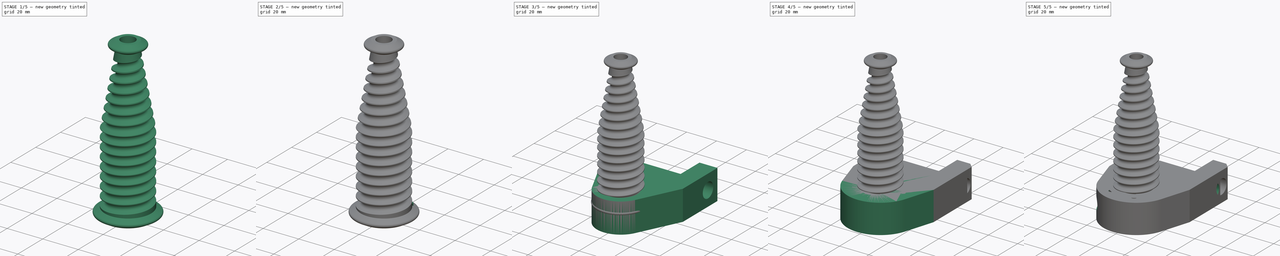
[diagram: build sequence overview — one tinted view per stage of 5, left to right]
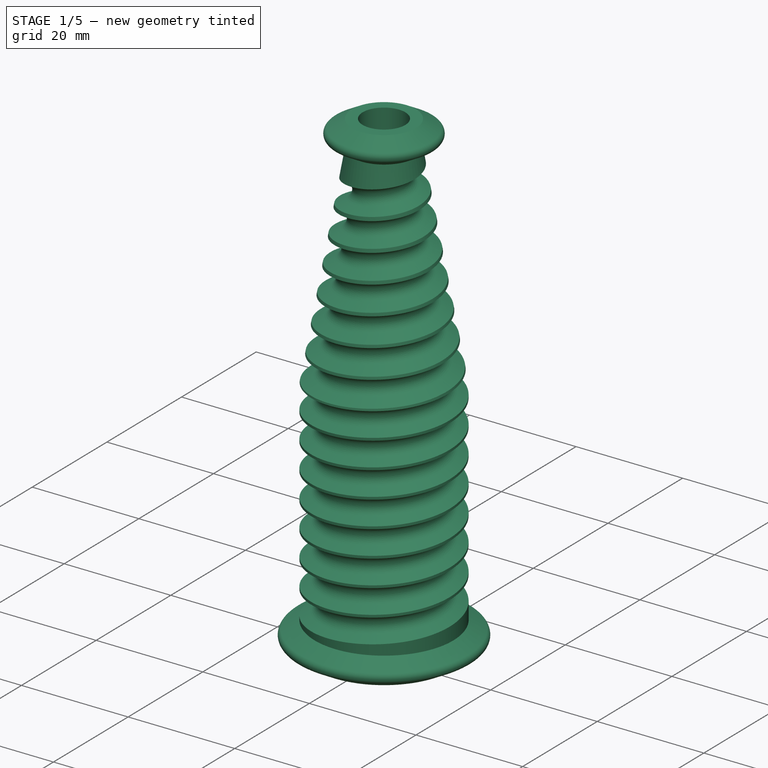
[diagram: stage 1 of 5 — iso view after this stage's code; geometry added in this stage tinted green]
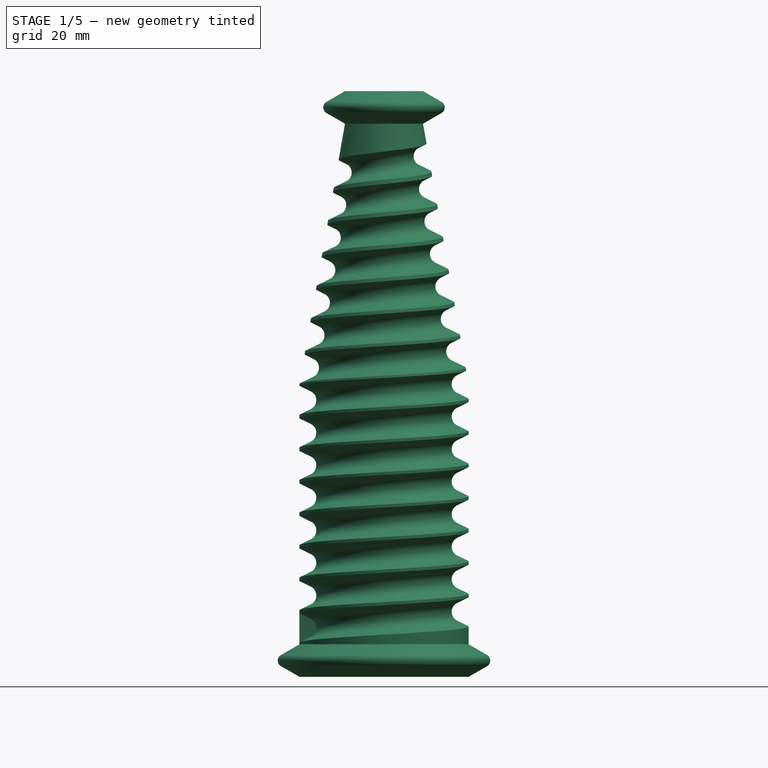
[diagram: stage 1 of 5 — front view after this stage's code; geometry added in this stage tinted green]
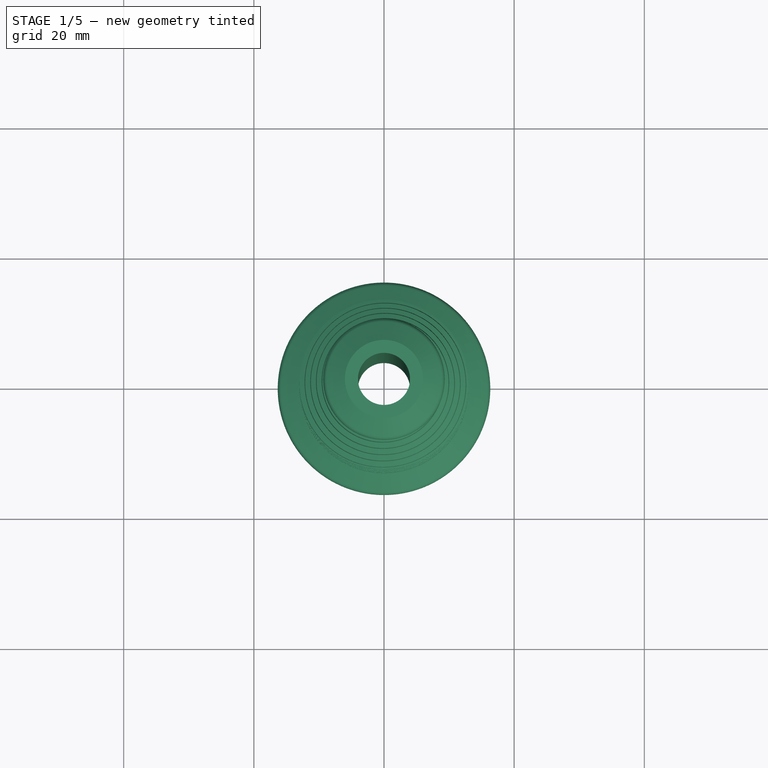
[diagram: stage 1 of 5 — top view after this stage's code; geometry added in this stage tinted green]
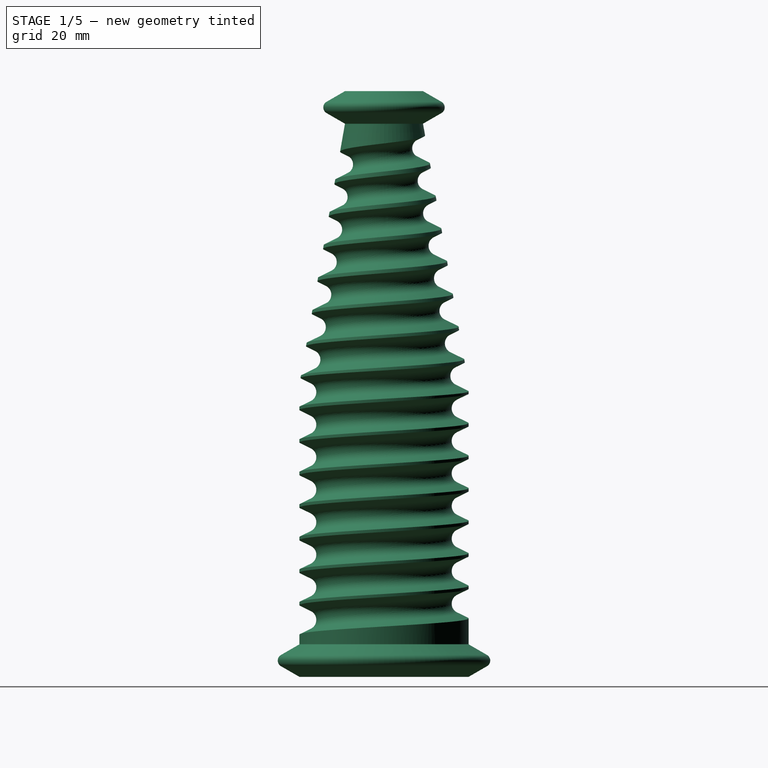
[diagram: stage 1 of 5 — right view after this stage's code; geometry added in this stage tinted green]
FCSTD DOCUMENT  (FreeCAD 0.19R24276 (Git))
Label: motormount
License: All rights reserved
LicenseURL: http://en.wikipedia.org/wiki/All_rights_reserved
objects: Sketcher::SketchObject×16, PartDesign::Hole×6, PartDesign::Chamfer×5, PartDesign::Body×4, PartDesign::Pad×3, PartDesign::Pocket×3, PartDesign::Fillet×3, PartDesign::SubtractiveHelix×2, PartDesign::PolarPattern×1, PartDesign::Groove×1, PartDesign::Revolution×1
note: 69 computed .brp shape members not serialized (recipe doc carries the construction recipe); baked Part::Feature solids carry a one-line shape summary decoded from their .brp

FEATURE [PartDesign::Body] Body002  label="Bearingguard"
  Group = -> [Sketch010,Pad002,Sketch011,Groove,Sketch012,Hole003,Sketch014,Hole004,Chamfer001,Chamfer003,Chamfer004]
  Origin = -> Origin002
  Placement = pos=(0,0,120) rot=(0,0,1;0rad)
  Tip = -> Chamfer004
FEATURE [Sketcher::SketchObject] Sketch016
  FullyConstrained = true
  MapMode = 5
  Placement = pos=(0,0,0) rot=(1,0,0;1.5708rad)
  Support = -> [XZ_Plane003]
  sketch-geometry (13):
    g0: LineSegment StartX=0 StartY=0 StartZ=0 EndX=0 EndY=90 EndZ=0
    g1: LineSegment StartX=0 StartY=0 StartZ=0 EndX=13 EndY=0 EndZ=0
    g2: LineSegment StartX=13 StartY=0 StartZ=0 EndX=15.8301 EndY=1.63397 EndZ=0
    g3: LineSegment StartX=15.8301 StartY=3.36603 StartZ=0 EndX=13 EndY=5 EndZ=0
    g4: LineSegment StartX=13 StartY=5 StartZ=0 EndX=13 EndY=45 EndZ=0
    g5: LineSegment StartX=13 StartY=45 StartZ=0 EndX=6 EndY=85 EndZ=0
    g6: LineSegment StartX=6 StartY=85 StartZ=0 EndX=8.83013 EndY=86.634 EndZ=0
    g7: LineSegment StartX=8.83013 StartY=88.366 StartZ=0 EndX=6 EndY=90 EndZ=0
    g8: LineSegment StartX=6 StartY=90 StartZ=0 EndX=0 EndY=90 EndZ=0
    g9: LineSegment StartX=6 StartY=85 StartZ=0 EndX=6 EndY=90 EndZ=0
    g10: LineSegment StartX=13 StartY=0 StartZ=0 EndX=13 EndY=5 EndZ=0
    g11: ArcOfCircle CenterX=15.3301 CenterY=2.5 CenterZ=0 NormalX=0 NormalY=0 NormalZ=1 AngleXU=0 Radius=1 StartAngle=5.23599 EndAngle=7.33038
    g12: ArcOfCircle CenterX=8.33013 CenterY=87.5 CenterZ=0 NormalX=0 NormalY=0 NormalZ=1 AngleXU=0 Radius=1 StartAngle=5.23599 EndAngle=7.33038
  constraints (34):
    c: Coincident(g-1,g0)
    c: PointOnObject(g0,g-2)
    c: Coincident(g0,g1)
    c: PointOnObject(g1,g-1)
    c: Coincident(g1,g2)
    c: Coincident(g3,g4)
    c: Vertical(g4)
    c: Coincident(g4,g5)
    c: Coincident(g5,g6)
    c: Coincident(g7,g8)
    c: Coincident(g8,g0)
    c: Horizontal(g8)
    c: Coincident(g9,g5)
    c: Coincident(g9,g7)
    c: Coincident(g10,g1)
    c: Coincident(g10,g3)
    c: Vertical(g10)
    c: Vertical(g9)
    c: Equal(g9,g10)
    c: DistanceY(g10,g10) = 5
    c: Tangent(g2,g11) = -1.5708
    c: Tangent(g3,g11) = -1.5708
    c: Tangent(g6,g12) = -1.5708
    c: Tangent(g7,g12) = -1.5708
    c: Equal(g12,g11)
    c: Equal(g2,g3)
    c: Equal(g3,g6)
    c: Equal(g6,g7)
    c: Angle(g3,g2) = 1.0472
    c: Radius(g11) = 1
    c: DistanceX(g8,g8) = 6
    c: DistanceX(g1,g1) = 13
    c: DistanceY(g0,g4) = 45
    c: DistanceY(g0,g0) = 90
FEATURE [PartDesign::Revolution] Revolution001
  Angle = 360
  Axis = (0,-2e-16,1)
  Base = (0,0,0)
  Placement = pos=(0,0,0) rot=(1,0,0;1.5708rad)
  Profile = -> Sketch016
  ReferenceAxis = -> Sketch016 [V_Axis]
  Reversed = true
FEATURE [Sketcher::SketchObject] Sketch017
  FullyConstrained = true
  MapMode = 5
  Placement = pos=(0,0,0) rot=(1,0,0;1.5708rad)
  Support = -> [XZ_Plane003]
  sketch-geometry (4):
    g0: LineSegment StartX=14 StartY=47.75 StartZ=0 EndX=14 EndY=42.25 EndZ=0
    g1: LineSegment StartX=14 StartY=42.25 StartZ=0 EndX=11.301 EndY=43.5607 EndZ=0
    g2: LineSegment StartX=11.301 StartY=46.4393 StartZ=0 EndX=14 EndY=47.75 EndZ=0
    g3: ArcOfCircle CenterX=12 CenterY=45 CenterZ=0 NormalX=0 NormalY=0 NormalZ=1 AngleXU=0 Radius=1.6 StartAngle=2.0229 EndAngle=4.26029
  constraints (11):
    c: Coincident(g0,g1)
    c: Coincident(g2,g0)
    c: Vertical(g0)
    c: Tangent(g1,g3) = 1.5708
    c: Tangent(g2,g3) = 1.5708
    c: Equal(g2,g1)
    c: Radius(g3) = 1.6
    c: DistanceY(g0,g0) = 5.5
    c: DistanceX(g3,g0) = 2
    c: DistanceY(g-1,g3) = 45
    c: DistanceX(g-1,g3) = 12
FEATURE [Sketcher::SketchObject] Sketch018
  FullyConstrained = true
  MapMode = 5
  Placement = pos=(0,0,0) rot=(1,0,0;1.5708rad)
  Support = -> [XZ_Plane003]
  sketch-geometry (4):
    g0: LineSegment StartX=14 StartY=47.75 StartZ=0 EndX=14 EndY=42.25 EndZ=0
    g1: LineSegment StartX=14 StartY=42.25 StartZ=0 EndX=11.301 EndY=43.5607 EndZ=0
    g2: LineSegment StartX=11.301 StartY=46.4393 StartZ=0 EndX=14 EndY=47.75 EndZ=0
    g3: ArcOfCircle CenterX=12 CenterY=45 CenterZ=0 NormalX=0 NormalY=0 NormalZ=1 AngleXU=0 Radius=1.6 StartAngle=2.0229 EndAngle=4.26029
  constraints (11):
    c: Coincident(g0,g1)
    c: Coincident(g2,g0)
    c: Vertical(g0)
    c: Tangent(g1,g3) = 1.5708
    c: Tangent(g2,g3) = 1.5708
    c: Equal(g2,g1)
    c: Radius(g3) = 1.6
    c: DistanceY(g0,g0) = 5.5
    c: DistanceX(g3,g0) = 2
    c: DistanceY(g-1,g3) = 45
    c: DistanceX(g-1,g3) = 12
FEATURE [PartDesign::SubtractiveHelix] SubtractiveHelix001
  Angle = 0
  Axis = (0,-2e-16,1)
  Base = (0,0,0)
  BaseFeature = -> Revolution001
  HasBeenEdited = true
  Height = 37.5
  LeftHanded = false
  Mode = 1
  Outside = false
  Pitch = 5
  Placement = pos=(0,0,0) rot=(1,0,0;1.5708rad)
  Profile = -> Sketch017
  ReferenceAxis = -> Sketch017 [V_Axis]
  Reversed = true
  Turns = 7.5
FEATURE [PartDesign::SubtractiveHelix] SubtractiveHelix002
  Angle = -9.5
  Axis = (0,-2e-16,1)
  Base = (0,0,0)
  BaseFeature = -> SubtractiveHelix001
  HasBeenEdited = true
  Height = 37.5
  LeftHanded = false
  Mode = 1
  Outside = false
  Pitch = 5
  Placement = pos=(0,0,0) rot=(1,0,0;1.5708rad)
  Profile = -> Sketch018
  ReferenceAxis = -> Sketch018 [V_Axis]
  Turns = 7.5
FEATURE [Sketcher::SketchObject] Sketch019
  FullyConstrained = true
  MapMode = 5
  Placement = pos=(0,0,0) rot=(0,1,0;3.14159rad)
  Support = -> [XY_Plane003]
  sketch-geometry (1):
    g0: Circle CenterX=0 CenterY=0 CenterZ=0 NormalX=0 NormalY=0 NormalZ=1 AngleXU=0 Radius=4
  constraints (2):
    c: Coincident(g0,g-1)
    c: Diameter(g0) = 8
FEATURE [PartDesign::Pocket] Pocket005
  BaseFeature = -> SubtractiveHelix002
  Length = 5
  Length2 = 100
  Placement = pos=(0,0,0) rot=(1,0,0;1.5708rad)
  Profile = -> Sketch019
  Type = 1
FEATURE [Sketcher::SketchObject] Sketch021
  FullyConstrained = true
  MapMode = 5
  Placement = pos=(0,0,0) rot=(0,1,0;3.14159rad)
  Support = -> [XY_Plane003]
  sketch-geometry (9):
    g0: LineSegment StartX=5.65685 StartY=5.65685 StartZ=0 EndX=-5.65685 EndY=5.65685 EndZ=0
    g1: LineSegment StartX=-5.65685 StartY=5.65685 StartZ=0 EndX=-5.65685 EndY=-5.65685 EndZ=0
    g2: LineSegment StartX=-5.65685 StartY=-5.65685 StartZ=0 EndX=5.65685 EndY=-5.65685 EndZ=0
    g3: LineSegment StartX=5.65685 StartY=-5.65685 StartZ=0 EndX=5.65685 EndY=5.65685 EndZ=0
    g4: Circle CenterX=0 CenterY=0 CenterZ=0 NormalX=0 NormalY=0 NormalZ=1 AngleXU=0 Radius=8
    g5: Circle CenterX=5.65685 CenterY=5.65685 CenterZ=0 NormalX=0 NormalY=0 NormalZ=1 AngleXU=0 Radius=1
    g6: Circle CenterX=5.65685 CenterY=-5.65685 CenterZ=0 NormalX=0 NormalY=0 NormalZ=1 AngleXU=0 Radius=1
    g7: Circle CenterX=-5.65685 CenterY=-5.65685 CenterZ=0 NormalX=0 NormalY=0 NormalZ=1 AngleXU=0 Radius=1
    g8: Circle CenterX=-5.65685 CenterY=5.65685 CenterZ=0 NormalX=0 NormalY=0 NormalZ=1 AngleXU=0 Radius=1
  constraints (22):
    c: Coincident(g0,g1)
    c: Coincident(g1,g2)
    c: Coincident(g2,g3)
    c: Coincident(g3,g0)
    c: Equal(g0,g1)
    c: Equal(g0,g2)
    c: Equal(g0,g3)
    c: PointOnObject(g0,g4)
    c: PointOnObject(g1,g4)
    c: PointOnObject(g2,g4)
    c: PointOnObject(g3,g4)
    c: Coincident(g4,g-1)
    c: Horizontal(g0)
    c: Coincident(g5,g0)
    c: Coincident(g6,g2)
    c: Coincident(g7,g1)
    c: Coincident(g8,g0)
    c: Diameter(g7) = 2
    c: Equal(g7,g8)
    c: Equal(g7,g5)
    c: Equal(g7,g6)
    c: Distance(g8,g6) = 16
FEATURE [PartDesign::Hole] Hole006
  BaseFeature = -> Pocket005
  Depth = 25
  DepthType = 0
  Diameter = 3
  DrillForDepth = false
  DrillPoint = 1
  DrillPointAngle = 118
  HoleCutCountersinkAngle = 90
  HoleCutCustomValues = false
  HoleCutDepth = 0
  HoleCutDiameter = 6.1
  HoleCutType = 0
  ModelActualThread = false
  Placement = pos=(0,0,0) rot=(1,0,0;1.5708rad)
  Profile = -> Sketch021
  Tapered = false
  TaperedAngle = 90
  ThreadAngle = 0
  ThreadClass = 0
  ThreadCutOffInner = 0
  ThreadCutOffOuter = 0
  ThreadDirection = 0
  ThreadFit = 0
  ThreadPitch = 0
  ThreadSize = 0
  ThreadType = 0
  Threaded = false
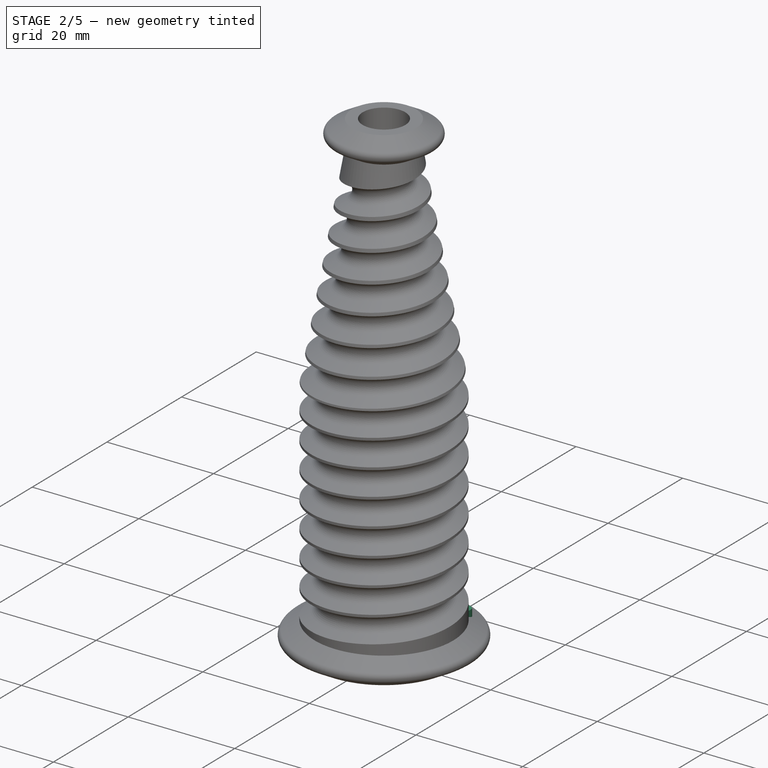
[diagram: stage 2 of 5 — iso view after this stage's code; geometry added in this stage tinted green]
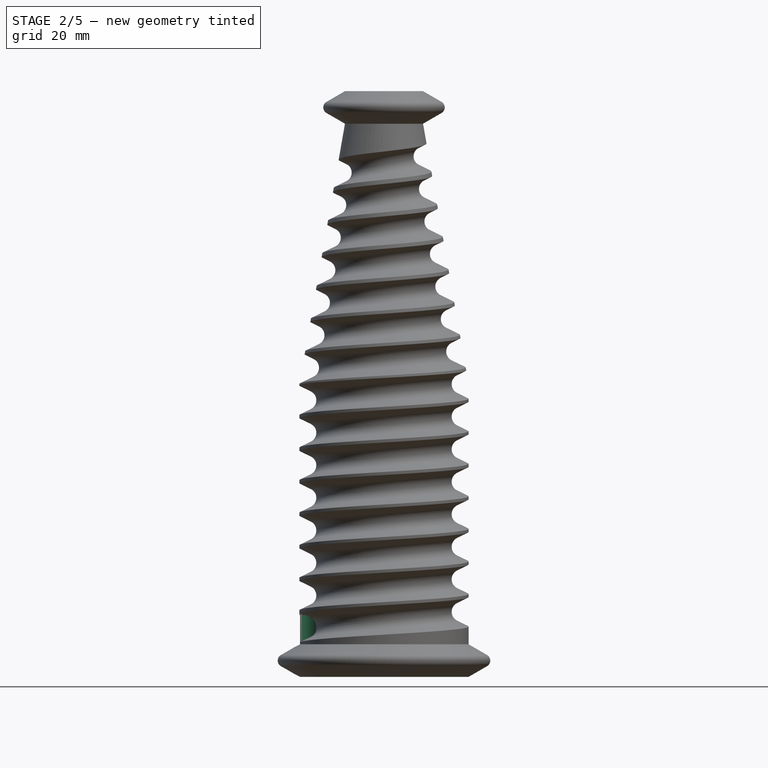
[diagram: stage 2 of 5 — front view after this stage's code; geometry added in this stage tinted green]
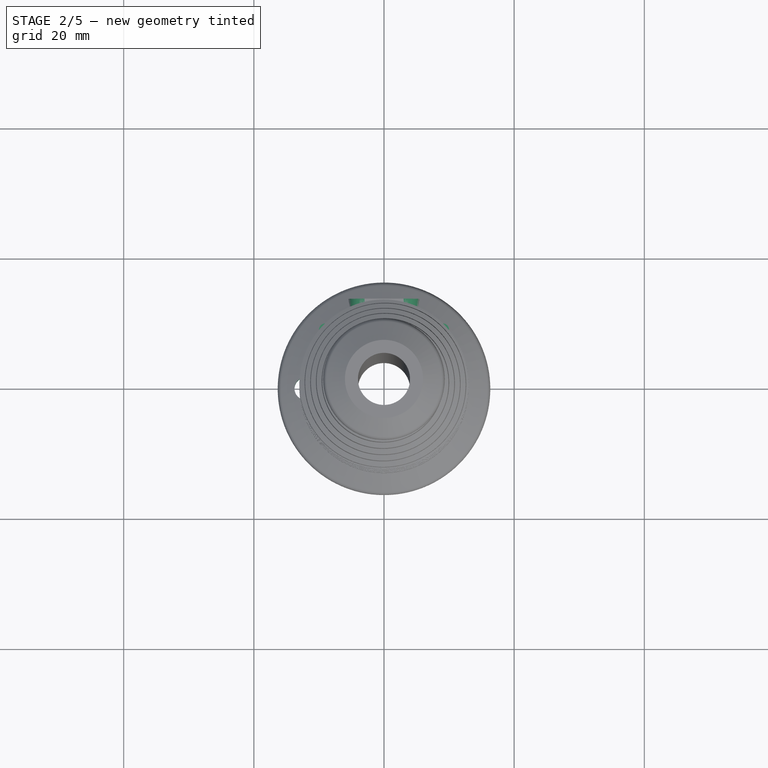
[diagram: stage 2 of 5 — top view after this stage's code; geometry added in this stage tinted green]
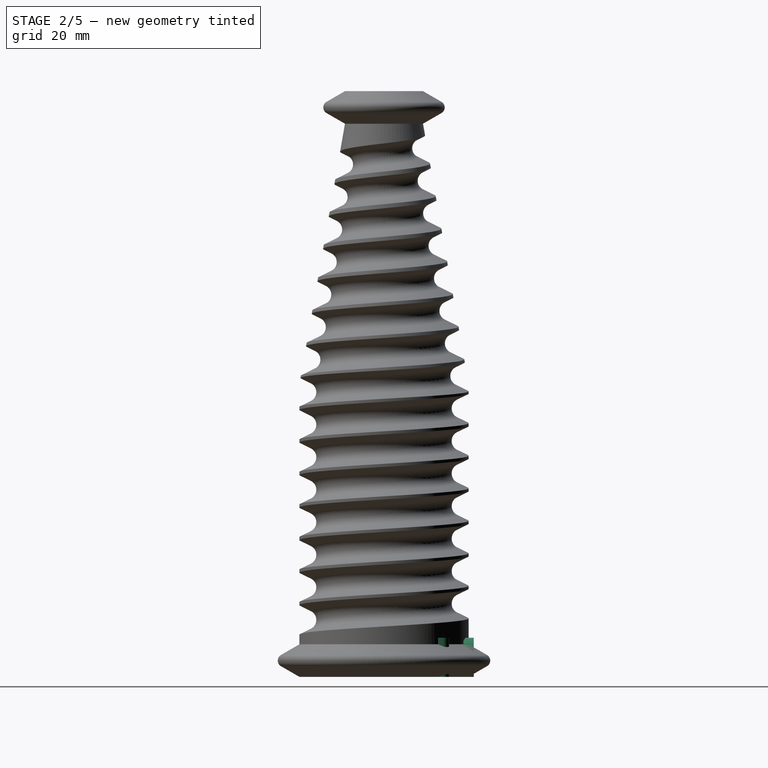
[diagram: stage 2 of 5 — right view after this stage's code; geometry added in this stage tinted green]
FEATURE [Sketcher::SketchObject] Sketch022
  FullyConstrained = true
  MapMode = 5
  Placement = pos=(0,0,0) rot=(0,1,0;3.14159rad)
  Support = -> [XY_Plane003]
  sketch-geometry (1):
    g0: Circle CenterX=12 CenterY=0 CenterZ=0 NormalX=0 NormalY=0 NormalZ=1 AngleXU=0 Radius=1.75
  constraints (3):
    c: PointOnObject(g0,g-1)
    c: Diameter(g0) = 3.5
    c: DistanceX(g-1,g0) = 12
FEATURE [Sketcher::SketchObject] Sketch023
  FullyConstrained = true
  MapMode = 5
  Support = -> [XY_Plane004]
  sketch-geometry (18):
    g0: ArcOfCircle CenterX=0 CenterY=0 CenterZ=0 NormalX=0 NormalY=0 NormalZ=1 AngleXU=0 Radius=8 StartAngle=5.77782 EndAngle=9.93014
    g1: LineSegment StartX=-7 StartY=-3.87298 StartZ=0 EndX=-8 EndY=-6 EndZ=0
    g2: LineSegment StartX=7 StartY=-3.87298 StartZ=0 EndX=8 EndY=-6 EndZ=0
    g3: LineSegment StartX=-7 StartY=-3.87298 StartZ=0 EndX=7 EndY=-3.87298 EndZ=0
    g4: LineSegment StartX=-8 StartY=-6 StartZ=0 EndX=8 EndY=-6 EndZ=0
    g5: ArcOfCircle CenterX=0 CenterY=0 CenterZ=0 NormalX=0 NormalY=0 NormalZ=1 AngleXU=0 Radius=10 StartAngle=3.14159 EndAngle=3.78509
    g6: ArcOfCircle CenterX=0 CenterY=0 CenterZ=0 NormalX=0 NormalY=0 NormalZ=1 AngleXU=0 Radius=10 StartAngle=5.63968 EndAngle=6.28319
    g7: LineSegment StartX=-10 StartY=1.2e-15 StartZ=0 EndX=-10 EndY=10 EndZ=0
    g8: LineSegment StartX=10 StartY=0 StartZ=0 EndX=10 EndY=10 EndZ=0
    g9: LineSegment StartX=-10 StartY=10 StartZ=0 EndX=-3 EndY=10 EndZ=0
    g10: LineSegment StartX=-3 StartY=10 StartZ=0 EndX=-3 EndY=12.2 EndZ=0
    g11: LineSegment StartX=-3 StartY=12.2 StartZ=0 EndX=-5.5 EndY=12.2 EndZ=0
    g12: LineSegment StartX=-5.5 StartY=12.2 StartZ=0 EndX=-5.5 EndY=13.8 EndZ=0
    g13: LineSegment StartX=-5.5 StartY=13.8 StartZ=0 EndX=5.5 EndY=13.8 EndZ=0
    g14: LineSegment StartX=5.5 StartY=13.8 StartZ=0 EndX=5.5 EndY=12.2 EndZ=0
    g15: LineSegment StartX=5.5 StartY=12.2 StartZ=0 EndX=3 EndY=12.2 EndZ=0
    g16: LineSegment StartX=3 StartY=12.2 StartZ=0 EndX=3 EndY=10 EndZ=0
    g17: LineSegment StartX=3 StartY=10 StartZ=0 EndX=10 EndY=10 EndZ=0
  constraints (52):
    c: Coincident(g0,g-1)
    c: Coincident(g1,g0)
    c: Coincident(g2,g0)
    c: Coincident(g3,g0)
    c: Coincident(g3,g0)
    c: Coincident(g4,g1)
    c: Coincident(g4,g2)
    c: Horizontal(g4)
    c: Horizontal(g3)
    c: Diameter(g0) = 16
    c: DistanceX(g3,g3) = 14
    c: Coincident(g5,g0)
    c: Coincident(g5,g1)
    c: Coincident(g6,g0)
    c: Coincident(g6,g2)
    c: Diameter(g5) = 20
    c: PointOnObject(g5,g-1)
    c: PointOnObject(g6,g-1)
    c: Coincident(g7,g5)
    c: Coincident(g8,g6)
    c: Vertical(g7)
    c: Vertical(g8)
    c: Equal(g8,g7)
    c: Coincident(g7,g9)
    c: Horizontal(g9)
    c: Coincident(g9,g10)
    c: Vertical(g10)
    c: Coincident(g10,g11)
    c: Horizontal(g11)
    c: Coincident(g11,g12)
    c: Vertical(g12)
    c: Coincident(g12,g13)
    c: Horizontal(g13)
    c: Coincident(g13,g14)
    c: Vertical(g14)
    c: Coincident(g14,g15)
    c: Horizontal(g15)
    c: Coincident(g15,g16)
    c: Vertical(g16)
    c: Coincident(g16,g17)
    c: Coincident(g17,g8)
    c: Horizontal(g17)
    c: Equal(g9,g17)
    c: Equal(g2,g1)
    c: DistanceX(g4,g4) = 16
    c: Equal(g10,g16)
    c: Equal(g15,g11)
    c: DistanceX(g10,g15) = 6
    c: DistanceX(g13,g13) = 11
    c: DistanceY(g10,g10) = 2.2
    c: DistanceY(g0,g7) = 10
    c: DistanceY(g12,g12) = 1.6
FEATURE [PartDesign::Pad] Pad003
  Direction = (1,1,1)
  Length = 6
  Length2 = 100
  Profile = -> Sketch023
  Type = 0
FEATURE [PartDesign::Fillet] Fillet
  Base = -> Pad003 [Edge18,Edge19,Edge37,Edge36]
  BaseFeature = -> Pad003
  Radius = 2
  SupportTransform = false
FEATURE [PartDesign::Fillet] Fillet001
  Base = -> Fillet [Edge42,Edge25,Edge38,Edge21]
  BaseFeature = -> Fillet
  Radius = 2.5
  SupportTransform = false
FEATURE [PartDesign::Fillet] Fillet002
  Base = -> Fillet001 [Edge55,Edge50]
  BaseFeature = -> Fillet001
  Radius = 1
  SupportTransform = false
FEATURE [PartDesign::Body] Body004  label="CableClip"
  Group = -> [Sketch023,Pad003,Fillet,Fillet001,Fillet002]
  Origin = -> Origin004
  Tip = -> Fillet002
FEATURE [PartDesign::Pocket] Pocket006
  BaseFeature = -> Hole006
  Length = 9.5
  Length2 = 100
  Placement = pos=(0,0,0) rot=(1,0,0;1.5708rad)
  Profile = -> Sketch022
  Type = 0
FEATURE [PartDesign::Body] Body003  label="Spool3"
  Group = -> [Sketch016,Revolution001,Sketch017,Sketch018,SubtractiveHelix001,SubtractiveHelix002,Sketch019,Pocket005,Sketch021,Hole006,Sketch022,Pocket006]
  Origin = -> Origin003
  Placement = pos=(0,0,15) rot=(0,0,1;0rad)
  Tip = -> Pocket006
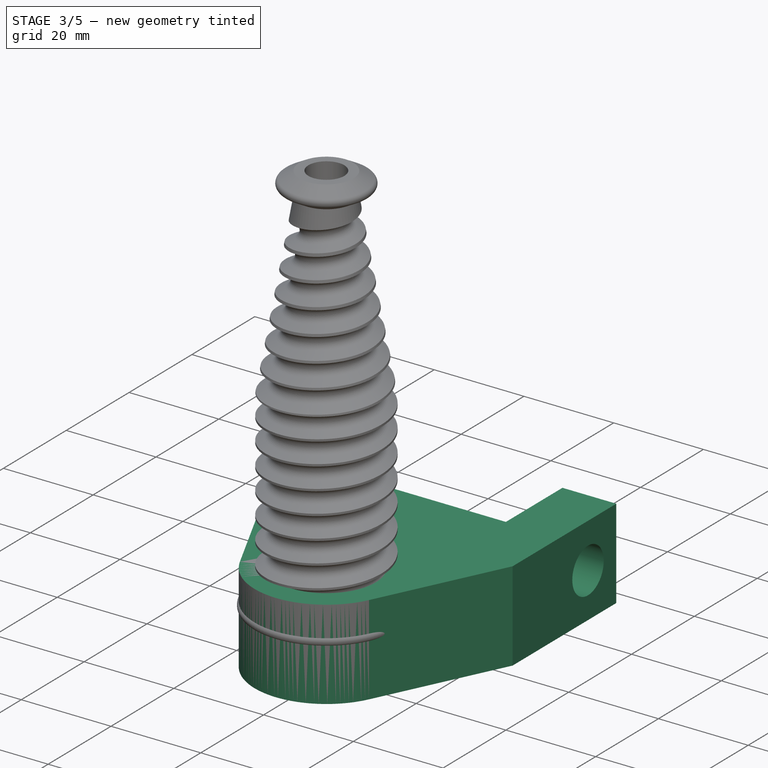
[diagram: stage 3 of 5 — iso view after this stage's code; geometry added in this stage tinted green]
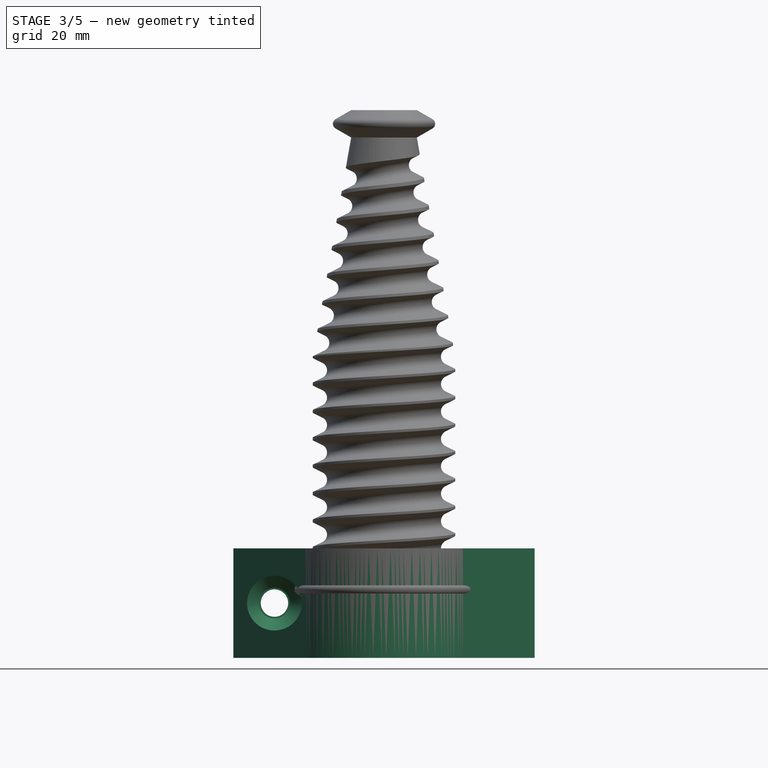
[diagram: stage 3 of 5 — front view after this stage's code; geometry added in this stage tinted green]
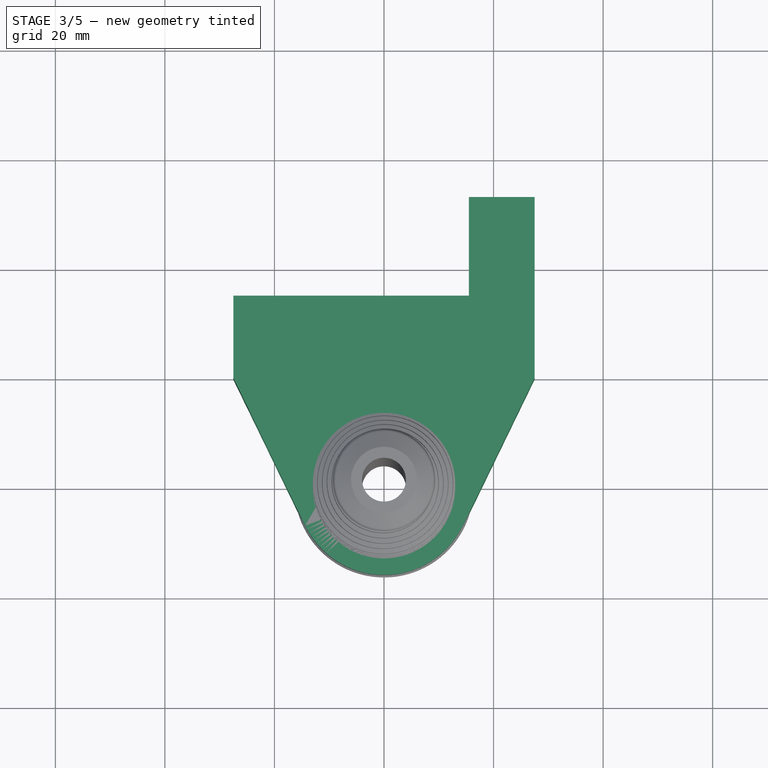
[diagram: stage 3 of 5 — top view after this stage's code; geometry added in this stage tinted green]
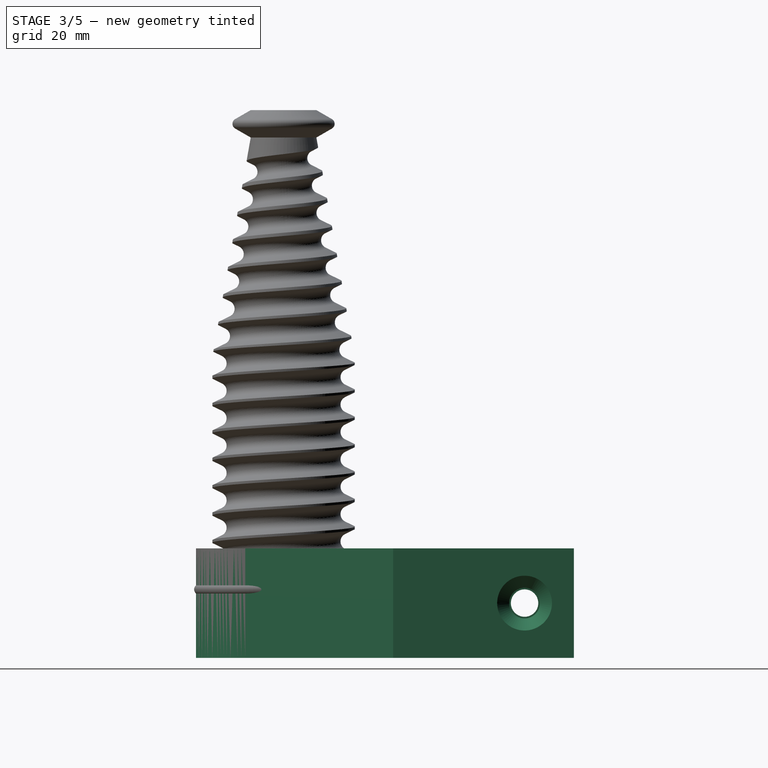
[diagram: stage 3 of 5 — right view after this stage's code; geometry added in this stage tinted green]
FEATURE [Sketcher::SketchObject] Sketch010
  FullyConstrained = true
  MapMode = 5
  Support = -> [XY_Plane002]
  sketch-geometry (10):
    g0: ArcOfCircle CenterX=0 CenterY=0 CenterZ=0 NormalX=0 NormalY=0 NormalZ=1 AngleXU=0 Radius=16 StartAngle=3.59369 EndAngle=5.83108
    g1: LineSegment StartX=-27.5 StartY=35 StartZ=0 EndX=27.5 EndY=35 EndZ=0
    g2: LineSegment StartX=-14.3925 StartY=-6.98969 StartZ=0 EndX=-27.5 EndY=20 EndZ=0
    g3: LineSegment StartX=-27.5 StartY=20 StartZ=0 EndX=-27.5 EndY=35 EndZ=0
    g4: LineSegment StartX=14.3925 StartY=-6.98969 StartZ=0 EndX=27.5 EndY=20 EndZ=0
    g5: LineSegment StartX=27.5 StartY=20 StartZ=0 EndX=27.5 EndY=35 EndZ=0
    g6: LineSegment StartX=-27.5 StartY=35 StartZ=0 EndX=15.5 EndY=35 EndZ=0
    g7: LineSegment StartX=15.5 StartY=35 StartZ=0 EndX=15.5 EndY=53 EndZ=0
    g8: LineSegment StartX=15.5 StartY=53 StartZ=0 EndX=27.5 EndY=53 EndZ=0
    g9: LineSegment StartX=27.5 StartY=53 StartZ=0 EndX=27.5 EndY=20 EndZ=0
  constraints (27):
    c: Coincident(g0,g-1)
    c: Diameter(g0) = 32
    c: Horizontal(g1)
    c: DistanceY(g0,g1) = 35
    c: DistanceX(g1,g1) = 55
    c: Tangent(g0,g2) = 1.5708
    c: Coincident(g2,g3)
    c: Coincident(g3,g1)
    c: Tangent(g0,g4) = -1.5708
    c: Coincident(g4,g5)
    c: Coincident(g5,g1)
    c: Vertical(g3)
    c: Vertical(g5)
    c: Equal(g3,g5)
    c: Equal(g2,g4)
    c: DistanceY(g5,g5) = 15
    c: Coincident(g3,g6)
    c: PointOnObject(g6,g1)
    c: Coincident(g6,g7)
    c: Vertical(g7)
    c: Coincident(g7,g8)
    c: Horizontal(g8)
    c: Coincident(g8,g9)
    c: Coincident(g9,g4)
    c: Vertical(g9)
    c: DistanceY(g7,g7) = 18
    c: DistanceX(g8,g8) = 12
FEATURE [PartDesign::Pad] Pad002
  Direction = (1,1,1)
  Length = 20
  Length2 = 100
  Midplane = true
  Profile = -> Sketch010
  Type = 0
FEATURE [Sketcher::SketchObject] Sketch011
  FullyConstrained = true
  MapMode = 5
  Placement = pos=(0,0,0) rot=(1,0,0;1.5708rad)
  Support = -> [XZ_Plane002]
  sketch-geometry (11):
    g0: LineSegment StartX=-11 StartY=3.25 StartZ=0 EndX=-11 EndY=14 EndZ=0
    g1: LineSegment StartX=-11 StartY=14 StartZ=0 EndX=0 EndY=14 EndZ=0
    g2: LineSegment StartX=0 StartY=-14 StartZ=0 EndX=-11 EndY=-14 EndZ=0
    g3: LineSegment StartX=-11 StartY=-14 StartZ=0 EndX=-11 EndY=-3.25 EndZ=0
    g4: LineSegment StartX=-11 StartY=-3.25 StartZ=0 EndX=-9 EndY=-3.25 EndZ=0
    g5: LineSegment StartX=-9 StartY=-3.25 StartZ=0 EndX=-9 EndY=3.25 EndZ=0
    g6: LineSegment StartX=-9 StartY=3.25 StartZ=0 EndX=-11 EndY=3.25 EndZ=0
    g7: LineSegment StartX=-9 StartY=3.25 StartZ=0 EndX=0 EndY=3.25 EndZ=0
    g8: LineSegment StartX=-9 StartY=3.25 StartZ=0 EndX=0 EndY=0 EndZ=0
    g9: LineSegment StartX=0 StartY=0 StartZ=0 EndX=-9 EndY=-3.25 EndZ=0
    g10: LineSegment StartX=0 StartY=14 StartZ=0 EndX=0 EndY=-14 EndZ=0
  constraints (31):
    c: Vertical(g0)
    c: Coincident(g0,g1)
    c: Horizontal(g1)
    c: Horizontal(g2)
    c: Coincident(g2,g3)
    c: Vertical(g3)
    c: Coincident(g3,g4)
    c: Horizontal(g4)
    c: Coincident(g4,g5)
    c: Vertical(g5)
    c: Coincident(g5,g6)
    c: Coincident(g6,g0)
    c: Horizontal(g6)
    c: Coincident(g5,g7)
    c: PointOnObject(g7,g-2)
    c: Horizontal(g7)
    c: Equal(g4,g6)
    c: Coincident(g5,g8)
    c: Coincident(g8,g9)
    c: Coincident(g9,g4)
    c: Equal(g9,g8)
    c: PointOnObject(g1,g-2)
    c: PointOnObject(g2,g-2)
    c: Equal(g3,g0)
    c: DistanceX(g1,g1) = 11
    c: DistanceY(g-1,g0) = 14
    c: Coincident(g8,g-1)
    c: DistanceY(g5,g5) = 6.5
    c: DistanceX(g6,g6) = 2
    c: Coincident(g10,g1)
    c: Coincident(g10,g2)
FEATURE [PartDesign::Groove] Groove
  Angle = 360
  Axis = (0,-2e-16,1)
  Base = (0,0,0)
  BaseFeature = -> Pad002
  Profile = -> Sketch011
  ReferenceAxis = -> Sketch011 [V_Axis]
  Reversed = true
FEATURE [Sketcher::SketchObject] Sketch012
  AttachmentOffset = pos=(0,0,10) rot=(0,0,1;0rad)
  FullyConstrained = true
  MapMode = 5
  Placement = pos=(0,-10,-2.2e-15) rot=(1,0,0;1.5708rad)
  Support = -> [XZ_Plane002]
  sketch-geometry (4):
    g0: Circle CenterX=20 CenterY=0 CenterZ=0 NormalX=0 NormalY=0 NormalZ=1 AngleXU=0 Radius=5
    g1: Circle CenterX=-20 CenterY=0 CenterZ=0 NormalX=0 NormalY=0 NormalZ=1 AngleXU=0 Radius=5
    g2: LineSegment StartX=-20 StartY=0 StartZ=0 EndX=0 EndY=0 EndZ=0
    g3: LineSegment StartX=0 StartY=0 StartZ=0 EndX=20 EndY=0 EndZ=0
  constraints (10):
    c: PointOnObject(g0,g-1)
    c: PointOnObject(g1,g-1)
    c: Coincident(g2,g1)
    c: Coincident(g2,g3)
    c: Coincident(g3,g0)
    c: Equal(g3,g2)
    c: Coincident(g-1,g2)
    c: Diameter(g0) = 10
    c: Equal(g0,g1)
    c: DistanceX(g1,g0) = 40
FEATURE [PartDesign::Hole] Hole003
  BaseFeature = -> Groove
  Depth = 5
  DepthType = 1
  Diameter = 5
  DrillForDepth = false
  DrillPoint = 0
  DrillPointAngle = 118
  HoleCutCountersinkAngle = 90
  HoleCutCustomValues = false
  HoleCutDepth = 44
  HoleCutDiameter = 10
  HoleCutType = 1
  ModelActualThread = false
  Profile = -> Sketch012
  Tapered = false
  TaperedAngle = 90
  ThreadAngle = 0
  ThreadClass = 0
  ThreadCutOffInner = 0
  ThreadCutOffOuter = 0
  ThreadDirection = 0
  ThreadFit = 0
  ThreadPitch = 0
  ThreadSize = 0
  ThreadType = 0
  Threaded = false
FEATURE [Sketcher::SketchObject] Sketch014
  FullyConstrained = true
  MapMode = 5
  Placement = pos=(27.5,0,0) rot=(0.57735,0.57735,0.57735;2.0944rad)
  Support = -> [Hole003]
  sketch-geometry (1):
    g0: Circle CenterX=44 CenterY=0 CenterZ=0 NormalX=0 NormalY=0 NormalZ=1 AngleXU=0 Radius=2.5
  constraints (3):
    c: PointOnObject(g0,g-1)
    c: DistanceX(g-1,g0) = 44
    c: Diameter(g0) = 5
FEATURE [PartDesign::Hole] Hole004
  BaseFeature = -> Hole003
  Depth = 5
  DepthType = 1
  Diameter = 5
  DrillForDepth = false
  DrillPoint = 1
  DrillPointAngle = 118
  HoleCutCountersinkAngle = 90
  HoleCutCustomValues = false
  HoleCutDepth = 11
  HoleCutDiameter = 10
  HoleCutType = 1
  ModelActualThread = false
  Profile = -> Sketch014
  Tapered = false
  TaperedAngle = 90
  ThreadAngle = 0
  ThreadClass = 0
  ThreadCutOffInner = 0
  ThreadCutOffOuter = 0
  ThreadDirection = 0
  ThreadFit = 0
  ThreadPitch = 0
  ThreadSize = 0
  ThreadType = 0
  Threaded = false
FEATURE [PartDesign::Chamfer] Chamfer001
  Angle = 45
  Base = -> Hole004 [Edge38,Edge26]
  BaseFeature = -> Hole004
  ChamferType = 0
  FlipDirection = false
  Size = 2.2
  Size2 = 1
  SupportTransform = false
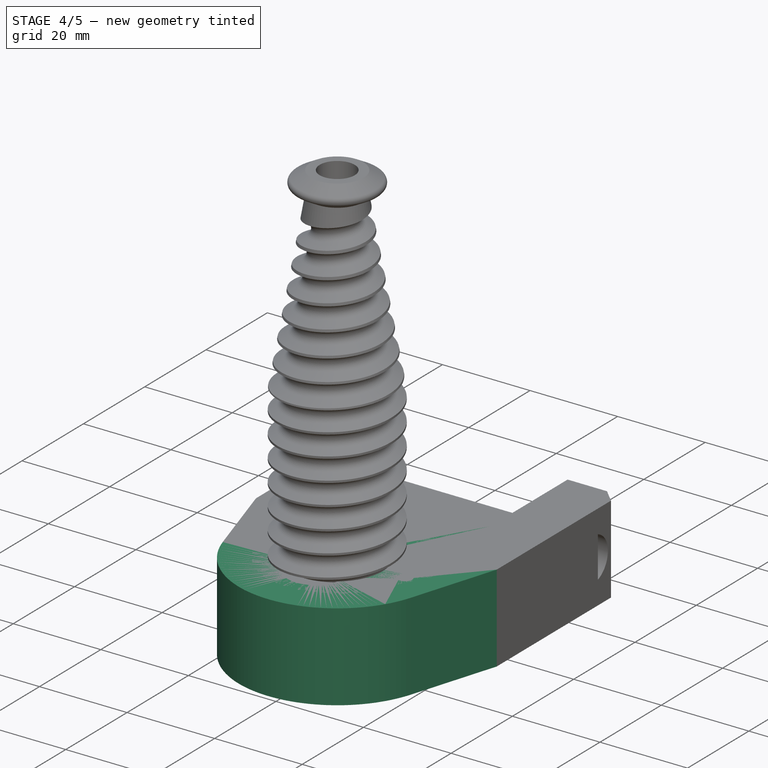
[diagram: stage 4 of 5 — iso view after this stage's code; geometry added in this stage tinted green]
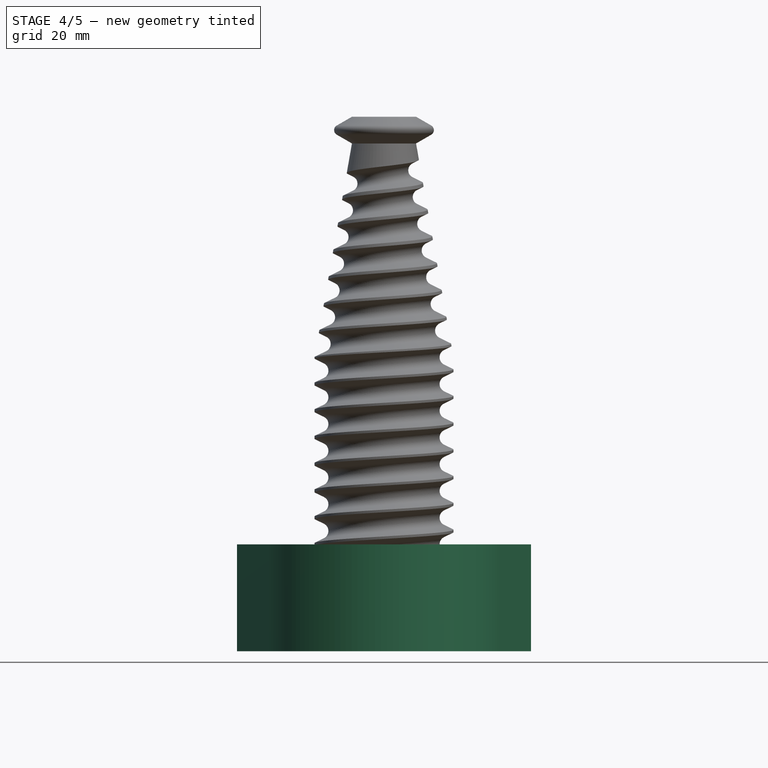
[diagram: stage 4 of 5 — front view after this stage's code; geometry added in this stage tinted green]
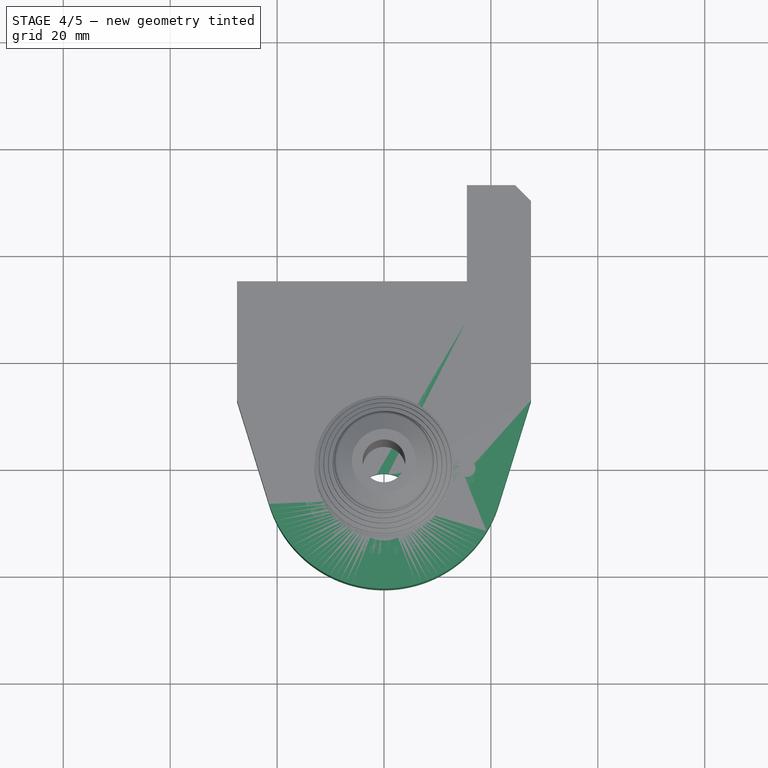
[diagram: stage 4 of 5 — top view after this stage's code; geometry added in this stage tinted green]
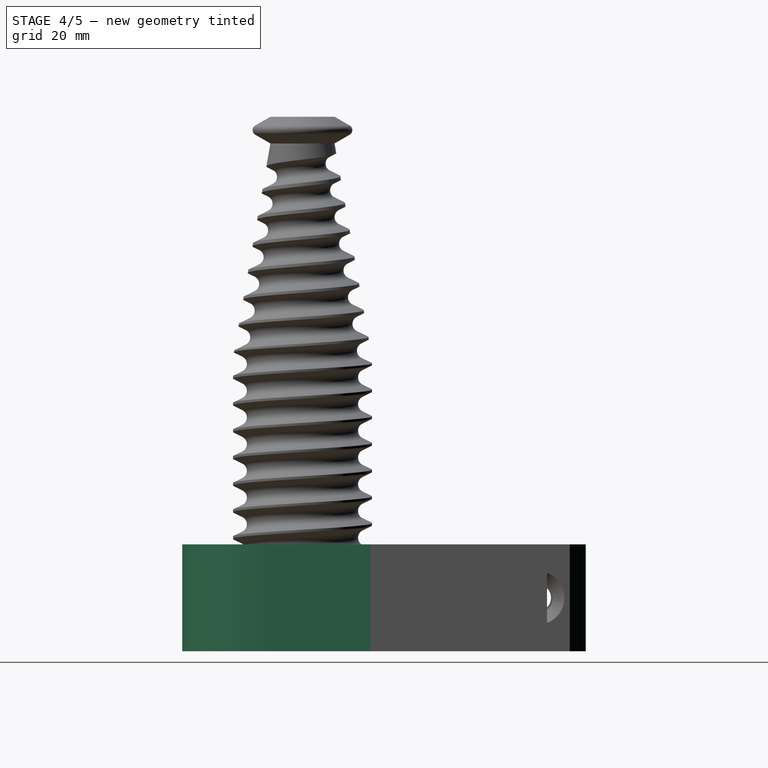
[diagram: stage 4 of 5 — right view after this stage's code; geometry added in this stage tinted green]
FEATURE [Sketcher::SketchObject] Sketch
  FullyConstrained = true
  MapMode = 5
  Support = -> [XY_Plane]
  expr: Constraints[8] = 35 - 7.25
  sketch-geometry (13):
    g0: Circle CenterX=0 CenterY=0 CenterZ=0 NormalX=0 NormalY=0 NormalZ=1 AngleXU=0 Radius=18.5
    g1: LineSegment StartX=-27.5 StartY=27.75 StartZ=0 EndX=27.5 EndY=27.75 EndZ=0
    g2: ArcOfCircle CenterX=0 CenterY=0 CenterZ=0 NormalX=0 NormalY=0 NormalZ=1 AngleXU=0 Radius=22.5 StartAngle=3.44178 EndAngle=5.98299
    g3: LineSegment StartX=-21.4938 StartY=-6.6533 StartZ=0 EndX=21.4938 EndY=-6.6533 EndZ=0
    g4: Circle CenterX=0 CenterY=-7.25 CenterZ=0 NormalX=0 NormalY=0 NormalZ=1 AngleXU=0 Radius=6.25
    g5: LineSegment StartX=-21.4938 StartY=-6.6533 StartZ=0 EndX=-27.5 EndY=12.75 EndZ=0
    g6: LineSegment StartX=-27.5 StartY=12.75 StartZ=0 EndX=-27.5 EndY=27.75 EndZ=0
    g7: LineSegment StartX=21.4938 StartY=-6.6533 StartZ=0 EndX=27.5 EndY=12.75 EndZ=0
    g8: LineSegment StartX=27.5 StartY=12.75 StartZ=0 EndX=27.5 EndY=27.75 EndZ=0
    g9: LineSegment StartX=-27.5 StartY=27.75 StartZ=0 EndX=15.5 EndY=27.75 EndZ=0
    g10: LineSegment StartX=27.5 StartY=12.75 StartZ=0 EndX=27.5 EndY=45.75 EndZ=0
    g11: LineSegment StartX=27.5 StartY=45.75 StartZ=0 EndX=15.5 EndY=45.75 EndZ=0
    g12: LineSegment StartX=15.5 StartY=45.75 StartZ=0 EndX=15.5 EndY=27.75 EndZ=0
  constraints (34):
    c: Coincident(g0,g-1)
    c: Diameter(g0) = 37
    c: Horizontal(g1)
    c: Coincident(g2,g0)
    c: Coincident(g2,g3) = 1.5708
    c: Coincident(g2,g3) = -1.5708
    c: Horizontal(g3)
    c: DistanceX(g1,g1) = 55
    c: DistanceY(g0,g1) = 27.75
    c: PointOnObject(g4,g-2)
    c: Diameter(g4) = 12.5
    c: DistanceY(g4,g2) = 7.25
    c: Diameter(g2) = 45
    c: Tangent(g2,g5) = 1.5708
    c: Coincident(g5,g6)
    c: Coincident(g6,g1)
    c: Tangent(g2,g7) = -1.5708
    c: Coincident(g7,g8)
    c: Coincident(g8,g1)
    c: Vertical(g6)
    c: Vertical(g8)
    c: Equal(g8,g6)
    c: DistanceY(g6,g6) = 15
    c: Coincident(g6,g9)
    c: PointOnObject(g9,g1)
    c: Coincident(g7,g10)
    c: Vertical(g10)
    c: Coincident(g10,g11)
    c: Horizontal(g11)
    c: Coincident(g11,g12)
    c: Coincident(g12,g9)
    c: Vertical(g12)
    c: DistanceY(g12,g12) = 18
    c: DistanceX(g11,g11) = 12
FEATURE [PartDesign::Pad] Pad
  Direction = (1,1,1)
  Length = 20
  Length2 = 100
  Midplane = true
  Profile = -> Sketch
  Type = 0
FEATURE [Sketcher::SketchObject] Sketch001
  AttachmentOffset = pos=(0,0,-10) rot=(0,0,1;0rad)
  FullyConstrained = true
  MapMode = 5
  Placement = pos=(0,0,-10) rot=(0,0,1;0rad)
  Support = -> [XY_Plane]
  sketch-geometry (1):
    g0: Circle CenterX=0 CenterY=0 CenterZ=0 NormalX=0 NormalY=0 NormalZ=1 AngleXU=0 Radius=18.375
  constraints (2):
    c: Coincident(g0,g-1)
    c: Diameter(g0) = 36.75
FEATURE [PartDesign::Pocket] Pocket
  BaseFeature = -> Pad
  Length = 14
  Length2 = 100
  Profile = -> Sketch001
  Reversed = true
  Type = 0
FEATURE [Sketcher::SketchObject] Sketch002
  AttachmentOffset = pos=(0,0,15) rot=(0,0,1;0rad)
  FullyConstrained = true
  MapMode = 5
  Placement = pos=(0,0,15) rot=(0,0,1;0rad)
  Support = -> [XY_Plane]
  sketch-geometry (1):
    g0: Circle CenterX=15.5 CenterY=0 CenterZ=0 NormalX=0 NormalY=0 NormalZ=1 AngleXU=0 Radius=1.75
  constraints (3):
    c: PointOnObject(g0,g-1)
    c: Diameter(g0) = 3.5
    c: DistanceX(g-1,g0) = 15.5
FEATURE [PartDesign::Hole] Hole
  BaseFeature = -> Pocket
  Depth = 25
  DepthType = 0
  Diameter = 3.2
  DrillForDepth = false
  DrillPoint = 1
  DrillPointAngle = 118
  HoleCutCountersinkAngle = 90
  HoleCutCustomValues = false
  HoleCutDepth = 4
  HoleCutDiameter = 6
  HoleCutType = 1
  ModelActualThread = false
  Profile = -> Sketch002
  Tapered = false
  TaperedAngle = 90
  ThreadAngle = 0
  ThreadClass = 0
  ThreadCutOffInner = 0
  ThreadCutOffOuter = 0
  ThreadDirection = 0
  ThreadFit = 0
  ThreadPitch = 0
  ThreadSize = 0
  ThreadType = 0
  Threaded = false
FEATURE [PartDesign::Body] Body  label="Motormount"
  Group = -> [Sketch,Pad,Sketch001,Pocket,Sketch002,Hole,PolarPattern,Sketch003,Hole001,Sketch015,Hole005,Chamfer,Chamfer002]
  Origin = -> Origin
  Placement = pos=(0,7.25,0) rot=(0,0,1;0rad)
  Tip = -> Chamfer002
FEATURE [PartDesign::Chamfer] Chamfer003
  Angle = 45
  Base = -> Chamfer001 [Edge32]
  BaseFeature = -> Chamfer001
  ChamferType = 0
  FlipDirection = false
  Size = 3
  Size2 = 1
  SupportTransform = false
FEATURE [PartDesign::Chamfer] Chamfer004
  Angle = 45
  Base = -> Chamfer003 [Edge44,Edge51]
  BaseFeature = -> Chamfer003
  ChamferType = 0
  FlipDirection = false
  Size = 1.5
  Size2 = 1
  SupportTransform = false
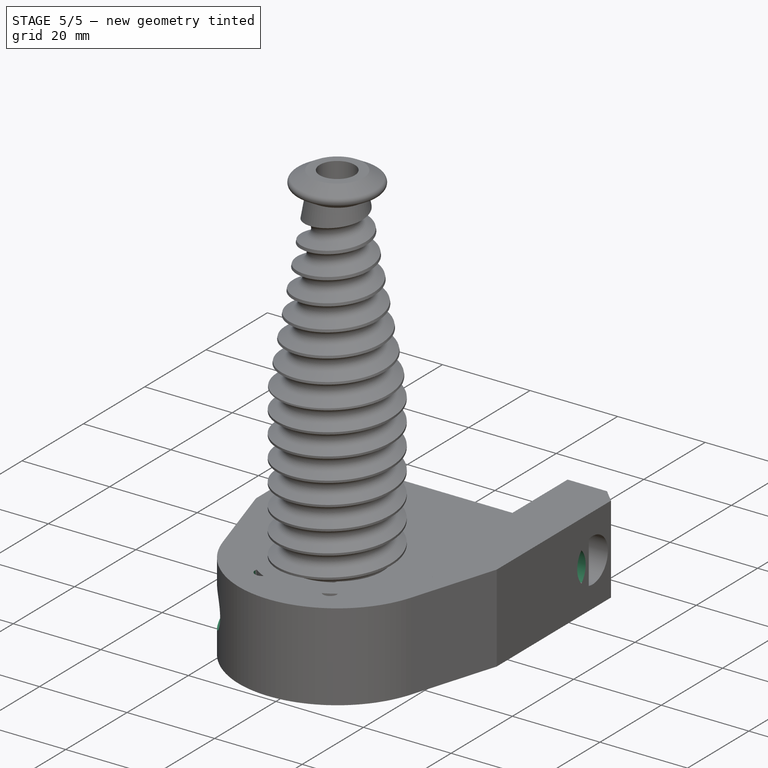
[diagram: stage 5 of 5 — iso view after this stage's code; geometry added in this stage tinted green]
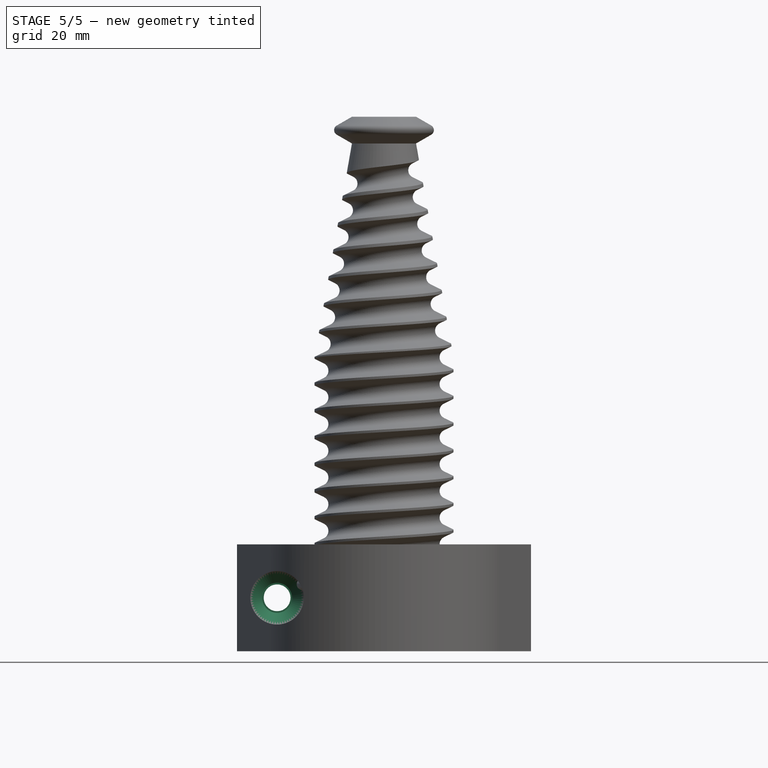
[diagram: stage 5 of 5 — front view after this stage's code; geometry added in this stage tinted green]
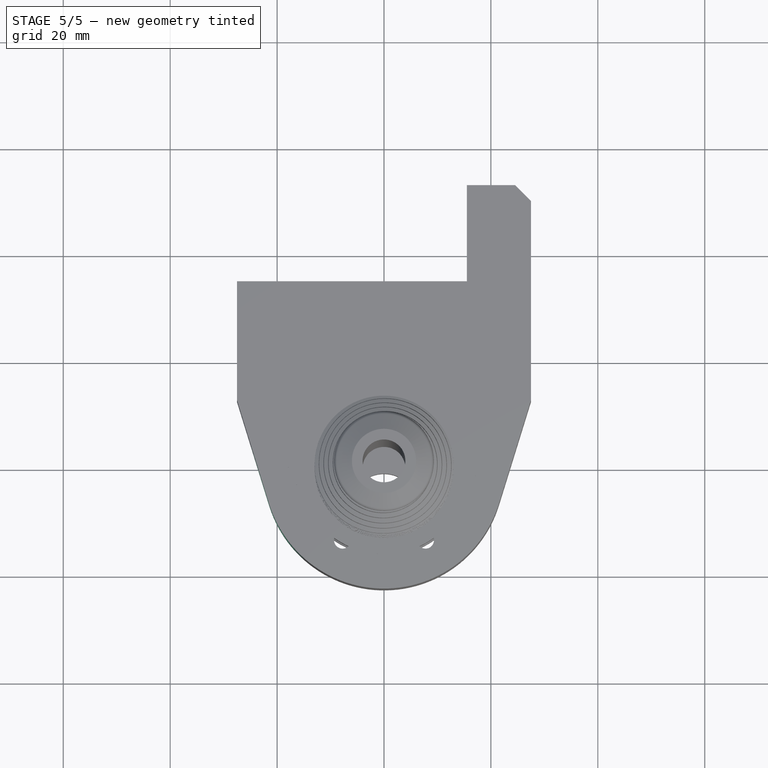
[diagram: stage 5 of 5 — top view after this stage's code; geometry added in this stage tinted green]
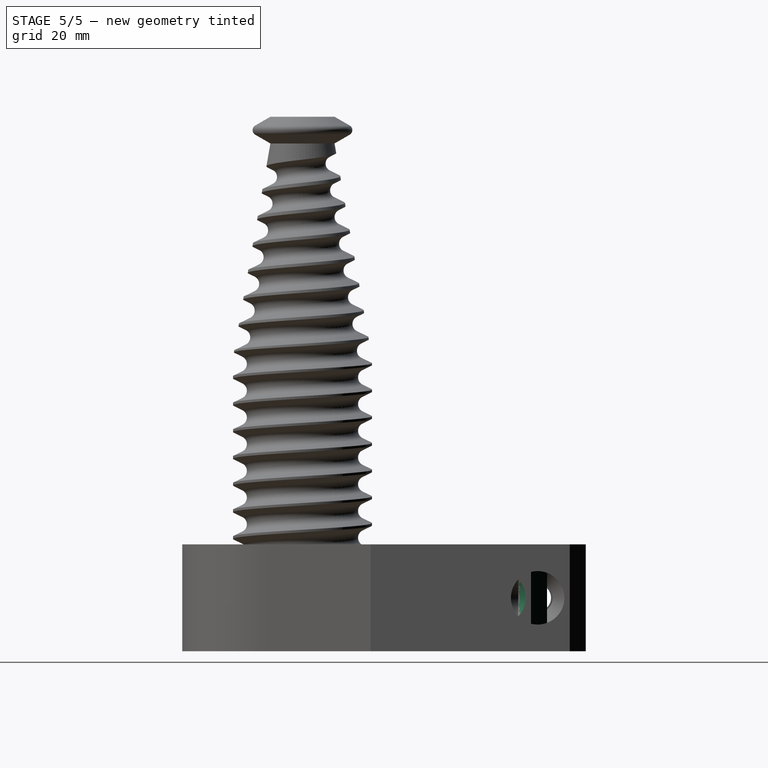
[diagram: stage 5 of 5 — right view after this stage's code; geometry added in this stage tinted green]
FEATURE [PartDesign::PolarPattern] PolarPattern
  Angle = 360
  Axis = -> Sketch002 [N_Axis]
  BaseFeature = -> Hole
  Occurrences = 6
  Originals = -> [Hole]
FEATURE [Sketcher::SketchObject] Sketch003
  AttachmentOffset = pos=(0,0,20) rot=(0,0,1;0rad)
  FullyConstrained = true
  MapMode = 5
  Placement = pos=(0,-20,-4.4e-15) rot=(1,0,0;1.5708rad)
  Support = -> [XZ_Plane]
  sketch-geometry (4):
    g0: Circle CenterX=-20 CenterY=0 CenterZ=0 NormalX=0 NormalY=0 NormalZ=1 AngleXU=0 Radius=4
    g1: Circle CenterX=20 CenterY=0 CenterZ=0 NormalX=0 NormalY=0 NormalZ=1 AngleXU=0 Radius=4
    g2: LineSegment StartX=-20 StartY=0 StartZ=0 EndX=0 EndY=0 EndZ=0
    g3: LineSegment StartX=20 StartY=0 StartZ=0 EndX=0 EndY=0 EndZ=0
  constraints (10):
    c: Coincident(g2,g0)
    c: Coincident(g2,g-1)
    c: Coincident(g3,g1)
    c: Coincident(g3,g-1)
    c: Equal(g2,g3)
    c: DistanceX(g0,g1) = 40
    c: Equal(g0,g1)
    c: Diameter(g1) = 8
    c: PointOnObject(g1,g-1)
    c: PointOnObject(g0,g-1)
FEATURE [PartDesign::Hole] Hole001
  BaseFeature = -> PolarPattern
  Depth = 4
  DepthType = 1
  Diameter = 5
  DrillForDepth = false
  DrillPoint = 1
  DrillPointAngle = 118
  HoleCutCountersinkAngle = 90
  HoleCutCustomValues = false
  HoleCutDepth = 46.75
  HoleCutDiameter = 10
  HoleCutType = 1
  ModelActualThread = false
  Profile = -> Sketch003
  Tapered = false
  TaperedAngle = 90
  ThreadAngle = 0
  ThreadClass = 0
  ThreadCutOffInner = 0
  ThreadCutOffOuter = 0
  ThreadDirection = 0
  ThreadFit = 0
  ThreadPitch = 0
  ThreadSize = 0
  ThreadType = 0
  Threaded = false
  expr: HoleCutDepth = 54 - 7.25
FEATURE [Sketcher::SketchObject] Sketch015
  FullyConstrained = true
  MapMode = 5
  Placement = pos=(27.5,0,0) rot=(0.57735,0.57735,0.57735;2.0944rad)
  Support = -> [Hole001]
  sketch-geometry (1):
    g0: Circle CenterX=36.75 CenterY=0 CenterZ=0 NormalX=0 NormalY=0 NormalZ=1 AngleXU=0 Radius=2.5
  constraints (3):
    c: PointOnObject(g0,g-1)
    c: DistanceX(g-1,g0) = 36.75
    c: Diameter(g0) = 5
FEATURE [PartDesign::Hole] Hole005
  BaseFeature = -> Hole001
  Depth = 25
  DepthType = 1
  Diameter = 5
  DrillForDepth = false
  DrillPoint = 1
  DrillPointAngle = 118
  HoleCutCountersinkAngle = 90
  HoleCutCustomValues = false
  HoleCutDepth = 11
  HoleCutDiameter = 10
  HoleCutType = 1
  ModelActualThread = false
  Profile = -> Sketch015
  Tapered = false
  TaperedAngle = 90
  ThreadAngle = 0
  ThreadClass = 0
  ThreadCutOffInner = 0
  ThreadCutOffOuter = 0
  ThreadDirection = 0
  ThreadFit = 0
  ThreadPitch = 0
  ThreadSize = 0
  ThreadType = 0
  Threaded = false
FEATURE [PartDesign::Chamfer] Chamfer
  Angle = 45
  Base = -> Hole005 [Edge66,Edge34]
  BaseFeature = -> Hole005
  ChamferType = 0
  FlipDirection = false
  Size = 2.2
  Size2 = 1
  SupportTransform = false
FEATURE [PartDesign::Chamfer] Chamfer002
  Angle = 45
  Base = -> Chamfer [Edge64]
  BaseFeature = -> Chamfer
  ChamferType = 0
  FlipDirection = false
  Size = 3
  Size2 = 1
  SupportTransform = false
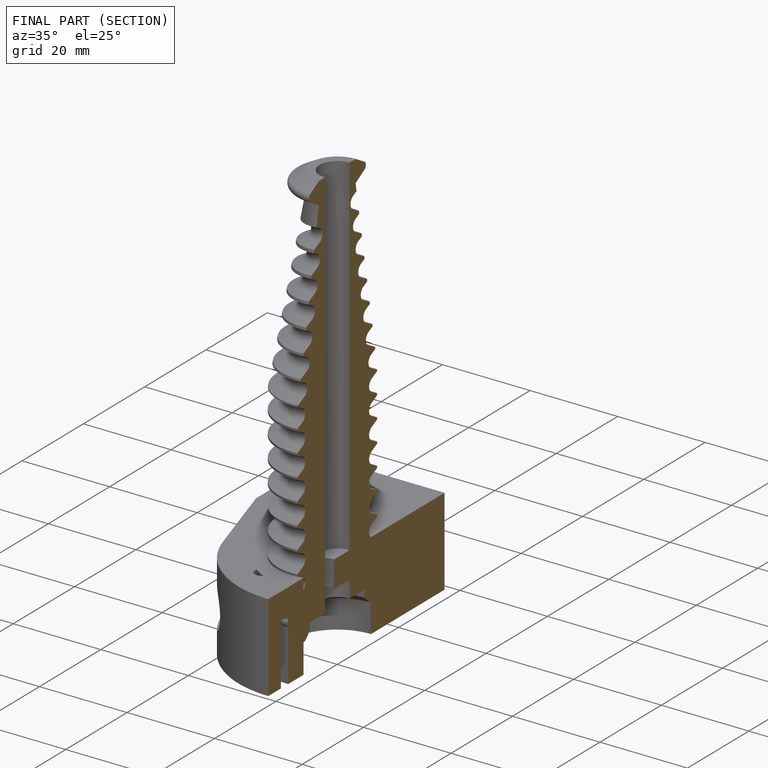
[diagram: finished part — half-section view (interior)]
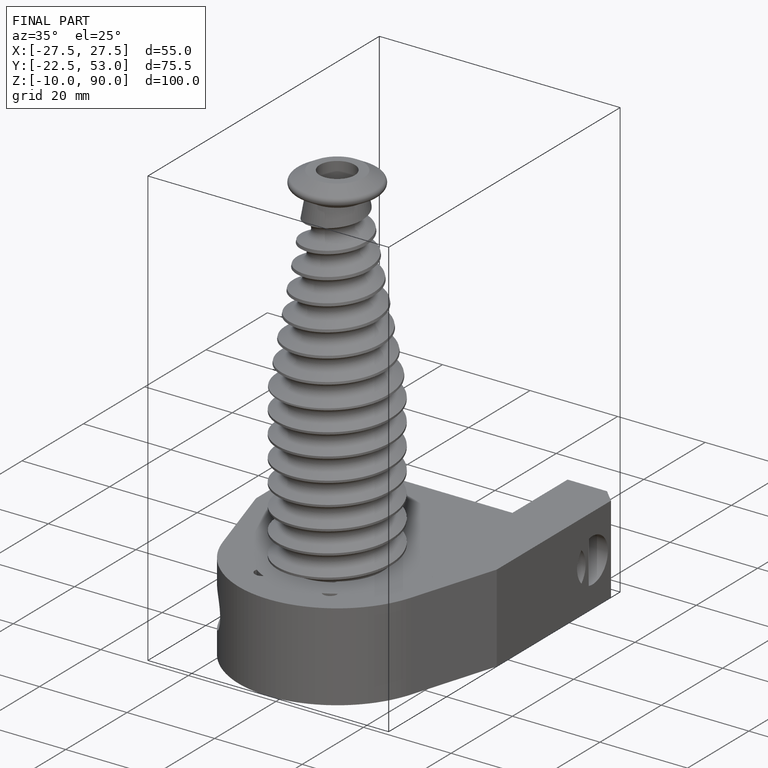
[diagram: finished part — iso view with bounding-box wireframe]
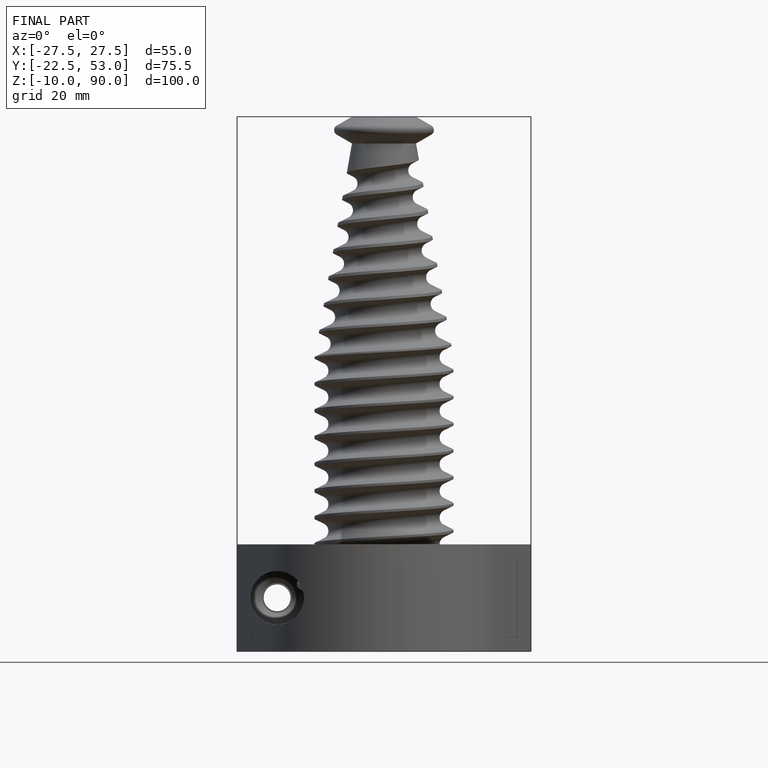
[diagram: finished part — front view with bounding-box wireframe]
